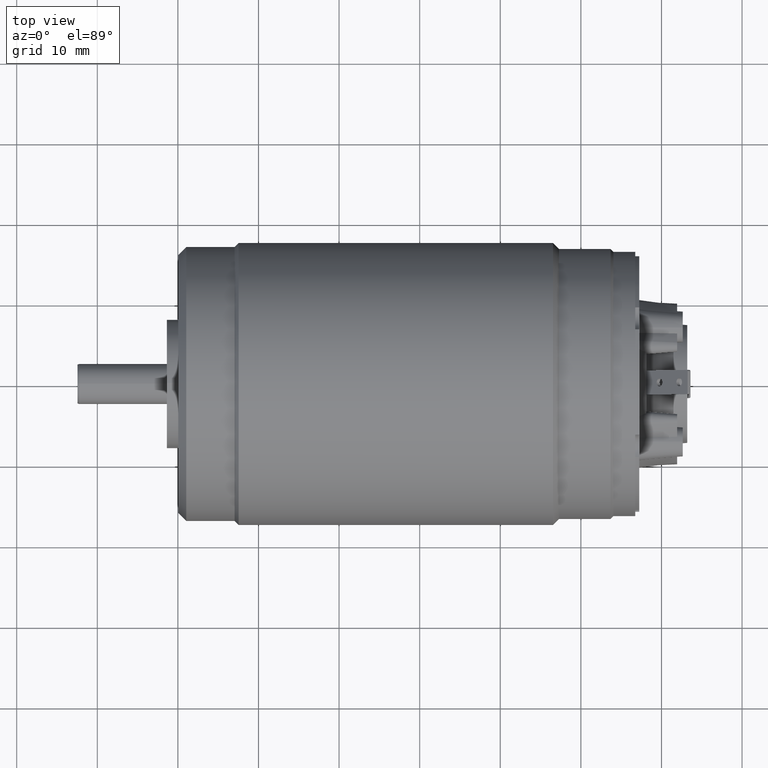
[diagram: clean part render]
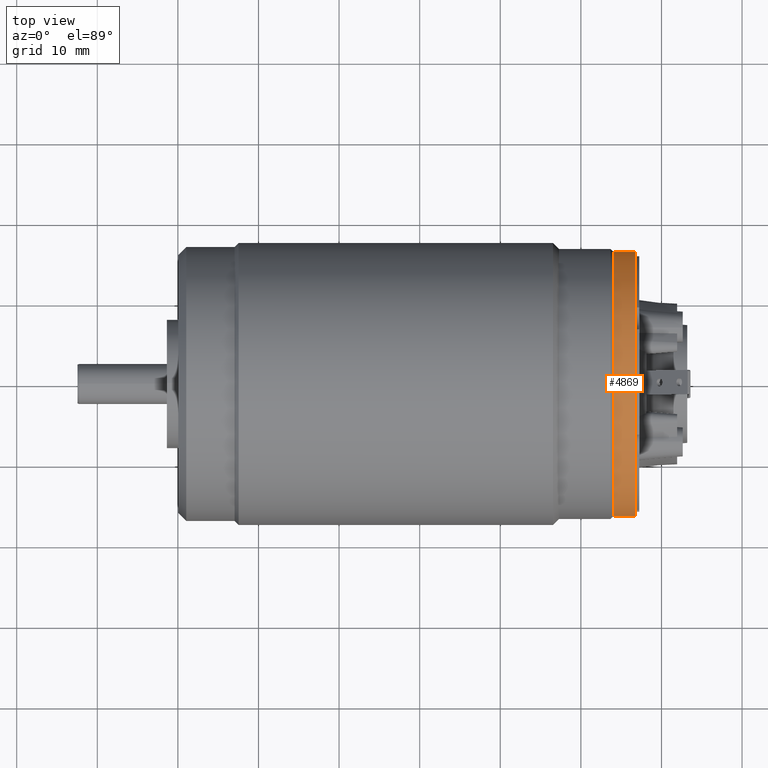
[diagram: same view with one face highlighted and labeled with its STEP entity id]
A machine part, top view. The second image highlights one B-rep face of the part: STEP entity #4869.
In plain terms, the highlighted cylindrical surface (partial cylindrical patch) has radius 16.4 mm, axis along (-1, 0, 0).
Its self-contained STEP definition (entity closure, byte-faithful):
#1029=DIRECTION('',(-1.E0,0.E0,0.E0));
#1030=VECTOR('',#1029,2.7E0);
#1031=CARTESIAN_POINT('',(6.74E0,1.64E1,0.E0));
#1032=LINE('',#1031,#1030);
#1033=CARTESIAN_POINT('',(6.74E0,0.E0,0.E0));
#1034=DIRECTION('',(1.E0,0.E0,0.E0));
#1035=DIRECTION('',(0.E0,1.E0,0.E0));
#1036=AXIS2_PLACEMENT_3D('',#1033,#1034,#1035);
#1038=DIRECTION('',(-1.E0,0.E0,0.E0));
#1039=VECTOR('',#1038,2.7E0);
#1040=CARTESIAN_POINT('',(6.74E0,-1.64E1,0.E0));
#1041=LINE('',#1040,#1039);
#1056=CARTESIAN_POINT('',(4.04E0,0.E0,0.E0));
#1057=DIRECTION('',(1.E0,0.E0,0.E0));
#1058=DIRECTION('',(0.E0,1.E0,0.E0));
#1059=AXIS2_PLACEMENT_3D('',#1056,#1057,#1058);
#3340=CARTESIAN_POINT('',(6.74E0,1.64E1,0.E0));
#3341=CARTESIAN_POINT('',(4.04E0,1.64E1,0.E0));
#3342=VERTEX_POINT('',#3340);
#3343=VERTEX_POINT('',#3341);
#3358=CARTESIAN_POINT('',(6.74E0,-1.64E1,0.E0));
#3359=CARTESIAN_POINT('',(4.04E0,-1.64E1,0.E0));
#3360=VERTEX_POINT('',#3358);
#3361=VERTEX_POINT('',#3359);
#4855=CARTESIAN_POINT('',(9.575E0,0.E0,0.E0));
#4856=DIRECTION('',(-1.E0,0.E0,0.E0));
#4857=DIRECTION('',(0.E0,1.E0,0.E0));
#4858=AXIS2_PLACEMENT_3D('',#4855,#4856,#4857);
#4859=CYLINDRICAL_SURFACE('',#4858,1.64E1);
#4861=ORIENTED_EDGE('',*,*,#4860,.F.);
#4862=ORIENTED_EDGE('',*,*,#4200,.T.);
#4864=ORIENTED_EDGE('',*,*,#4863,.T.);
#4866=ORIENTED_EDGE('',*,*,#4865,.F.);
#4867=EDGE_LOOP('',(#4861,#4862,#4864,#4866));
#4868=FACE_OUTER_BOUND('',#4867,.F.);
#4869=ADVANCED_FACE('',(#4868),#4859,.T.);
#1037=CIRCLE('',#1036,1.64E1);
#1060=CIRCLE('',#1059,1.64E1);
#4200=EDGE_CURVE('',#3342,#3360,#1037,.T.);
#4860=EDGE_CURVE('',#3342,#3343,#1032,.T.);
#4863=EDGE_CURVE('',#3360,#3361,#1041,.T.);
#4865=EDGE_CURVE('',#3343,#3361,#1060,.T.);